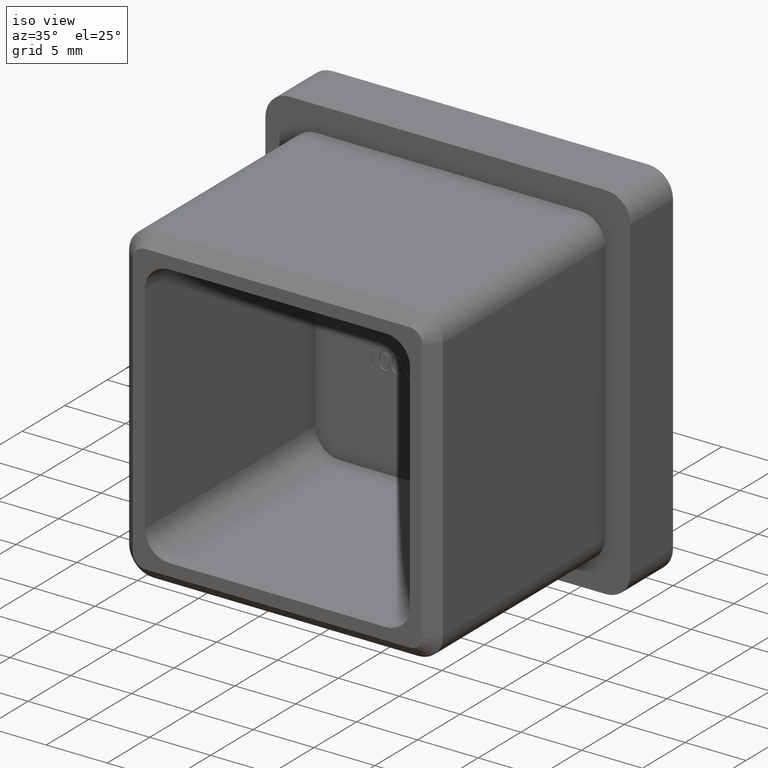
[diagram: clean part render]
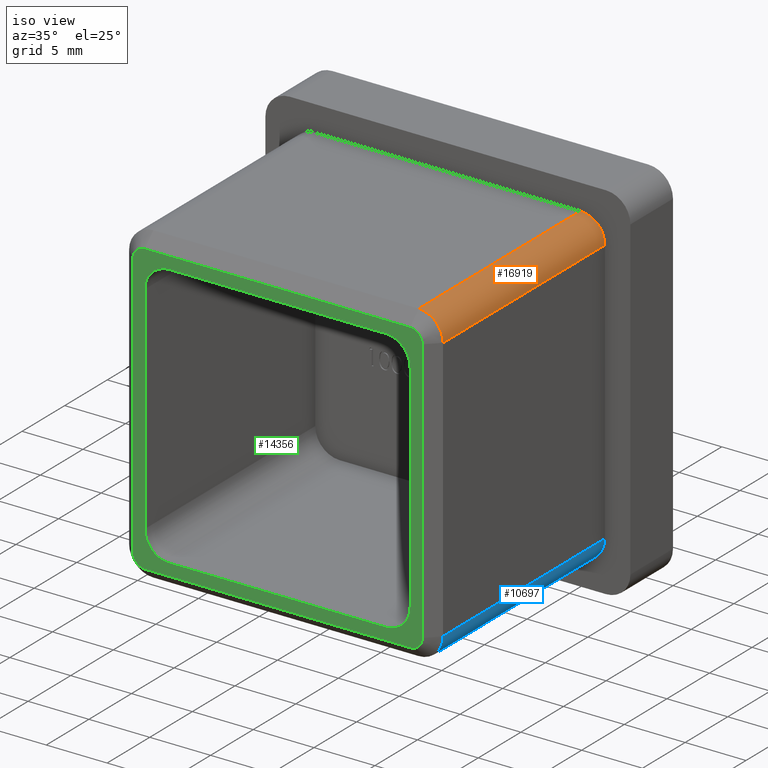
[diagram: same view with three faces highlighted in distinct colors, each labeled with its STEP entity id]
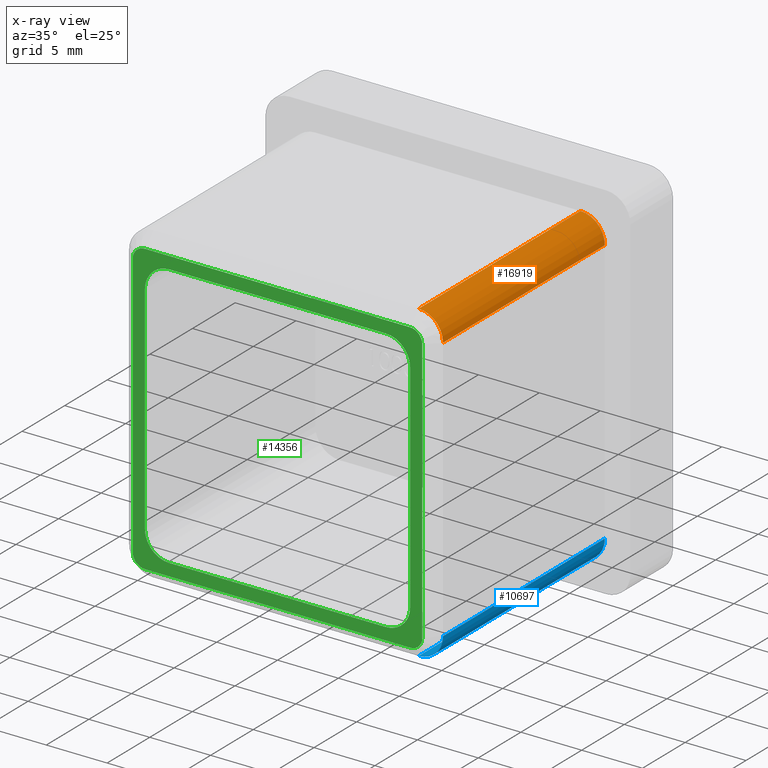
[diagram: x-ray of the same camera — body ghosted, the three highlighted faces saturated]
A machine part, iso view with three faces highlighted in distinct colors.
The next image is the same camera in x-ray (body ghosted, the three faces saturated) — at least one of them is partly hidden behind the body in this view.
Their STEP definitions:

[orange] entity #16919 — the highlighted cylindrical surface (edge-blend (fillet) strip) has radius 2 mm, axis along (0, 1, 0).
#372 = CARTESIAN_POINT ( 'NONE',  ( 10.90000000000000400, -20.00000000000000000, 12.90000000000000600 ) ) ;
#675 = EDGE_CURVE ( 'NONE', #17185, #14687, #14246, .T. ) ;
#1902 = DIRECTION ( 'NONE',  ( 0.0000000000000000000, 1.000000000000000000, 0.0000000000000000000 ) ) ;
#2647 = ORIENTED_EDGE ( 'NONE', *, *, #10347, .F. ) ;
#2773 = CARTESIAN_POINT ( 'NONE',  ( 10.90000000000000400, -19.00000000000000000, 12.90000000000000600 ) ) ;
#3152 = DIRECTION ( 'NONE',  ( 0.0000000000000000000, 0.0000000000000000000, 1.000000000000000000 ) ) ;
#4919 = AXIS2_PLACEMENT_3D ( 'NONE', #10643, #16158, #12063 ) ;
#5262 = VECTOR ( 'NONE', #8575, 1000.000000000000000 ) ;
#5779 = CARTESIAN_POINT ( 'NONE',  ( 12.90000000000000600, -20.00000000000000000, 10.90000000000000600 ) ) ;
#6280 = EDGE_LOOP ( 'NONE', ( #10754, #15934, #13231, #2647 ) ) ;
#6798 = CYLINDRICAL_SURFACE ( 'NONE', #8849, 2.000000000000000000 ) ;
#6835 = CIRCLE ( 'NONE', #4919, 2.000000000000000000 ) ;
#7139 = CARTESIAN_POINT ( 'NONE',  ( 10.90000000000000400, 0.0000000000000000000, 10.90000000000000600 ) ) ;
#7676 = VECTOR ( 'NONE', #16742, 1000.000000000000000 ) ;
#8197 = CARTESIAN_POINT ( 'NONE',  ( 12.90000000000000600, 0.0000000000000000000, 10.90000000000000600 ) ) ;
#8359 = VERTEX_POINT ( 'NONE', #8197 ) ;
#8388 = CARTESIAN_POINT ( 'NONE',  ( 12.90000000000000600, -19.00000000000000000, 10.90000000000000600 ) ) ;
#8575 = DIRECTION ( 'NONE',  ( -0.0000000000000000000, -1.000000000000000000, -0.0000000000000000000 ) ) ;
#8849 = AXIS2_PLACEMENT_3D ( 'NONE', #16968, #17023, #15715 ) ;
#9022 = EDGE_CURVE ( 'NONE', #8359, #11552, #9722, .T. ) ;
#9722 = LINE ( 'NONE', #5779, #5262 ) ;
#10347 = EDGE_CURVE ( 'NONE', #14687, #8359, #13299, .T. ) ;
#10643 = CARTESIAN_POINT ( 'NONE',  ( 10.90000000000000400, -19.00000000000000000, 10.90000000000000600 ) ) ;
#10754 = ORIENTED_EDGE ( 'NONE', *, *, #675, .F. ) ;
#11552 = VERTEX_POINT ( 'NONE', #8388 ) ;
#12063 = DIRECTION ( 'NONE',  ( 0.0000000000000000000, 0.0000000000000000000, -1.000000000000000000 ) ) ;
#12082 = CARTESIAN_POINT ( 'NONE',  ( 10.90000000000000400, 0.0000000000000000000, 12.90000000000000600 ) ) ;
#12410 = AXIS2_PLACEMENT_3D ( 'NONE', #7139, #1902, #3152 ) ;
#13231 = ORIENTED_EDGE ( 'NONE', *, *, #9022, .F. ) ;
#13299 = CIRCLE ( 'NONE', #12410, 2.000000000000000000 ) ;
#14246 = LINE ( 'NONE', #372, #7676 ) ;
#14687 = VERTEX_POINT ( 'NONE', #12082 ) ;
#15037 = EDGE_CURVE ( 'NONE', #17185, #11552, #6835, .T. ) ;
#15715 = DIRECTION ( 'NONE',  ( 0.0000000000000000000, 0.0000000000000000000, 1.000000000000000000 ) ) ;
#15934 = ORIENTED_EDGE ( 'NONE', *, *, #15037, .T. ) ;
#16158 = DIRECTION ( 'NONE',  ( 0.0000000000000000000, 1.000000000000000000, 0.0000000000000000000 ) ) ;
#16546 = FACE_OUTER_BOUND ( 'NONE', #6280, .T. ) ;
#16742 = DIRECTION ( 'NONE',  ( 0.0000000000000000000, 1.000000000000000000, 0.0000000000000000000 ) ) ;
#16919 = ADVANCED_FACE ( 'NONE', ( #16546 ), #6798, .T. ) ;
#16968 = CARTESIAN_POINT ( 'NONE',  ( 10.90000000000000400, -20.00000000000000000, 10.90000000000000600 ) ) ;
#17023 = DIRECTION ( 'NONE',  ( 0.0000000000000000000, 1.000000000000000000, 0.0000000000000000000 ) ) ;
#17185 = VERTEX_POINT ( 'NONE', #2773 ) ;

[blue] entity #10697 — the highlighted cylindrical surface (edge-blend (fillet) strip) has radius 2 mm, axis along (0, 1, 0).
#41 = VECTOR ( 'NONE', #11665, 1000.000000000000000 ) ;
#2076 = VECTOR ( 'NONE', #3824, 1000.000000000000000 ) ;
#2622 = LINE ( 'NONE', #15650, #41 ) ;
#2645 = EDGE_CURVE ( 'NONE', #14105, #12342, #17092, .T. ) ;
#2680 = CARTESIAN_POINT ( 'NONE',  ( 10.90000000000000400, -19.00000000000000000, -12.90000000000000600 ) ) ;
#3010 = CARTESIAN_POINT ( 'NONE',  ( 12.90000000000000600, 0.0000000000000000000, -10.90000000000000400 ) ) ;
#3331 = AXIS2_PLACEMENT_3D ( 'NONE', #9098, #11866, #14539 ) ;
#3824 = DIRECTION ( 'NONE',  ( 0.0000000000000000000, 1.000000000000000000, 0.0000000000000000000 ) ) ;
#3952 = LINE ( 'NONE', #11958, #2076 ) ;
#4311 = DIRECTION ( 'NONE',  ( 0.0000000000000000000, 1.000000000000000000, 0.0000000000000000000 ) ) ;
#4970 = ORIENTED_EDGE ( 'NONE', *, *, #7963, .T. ) ;
#5001 = EDGE_CURVE ( 'NONE', #12342, #12366, #2622, .T. ) ;
#5691 = DIRECTION ( 'NONE',  ( 0.0000000000000000000, 0.0000000000000000000, 1.000000000000000000 ) ) ;
#5874 = CIRCLE ( 'NONE', #16740, 2.000000000000000000 ) ;
#6839 = CARTESIAN_POINT ( 'NONE',  ( 10.90000000000000400, 0.0000000000000000000, -12.90000000000000600 ) ) ;
#7213 = AXIS2_PLACEMENT_3D ( 'NONE', #12424, #4311, #5691 ) ;
#7959 = EDGE_LOOP ( 'NONE', ( #17225, #4970, #8133, #10488 ) ) ;
#7963 = EDGE_CURVE ( 'NONE', #12979, #12366, #5874, .T. ) ;
#8014 = FACE_OUTER_BOUND ( 'NONE', #7959, .T. ) ;
#8133 = ORIENTED_EDGE ( 'NONE', *, *, #5001, .F. ) ;
#9098 = CARTESIAN_POINT ( 'NONE',  ( 10.90000000000000600, 0.0000000000000000000, -10.90000000000000400 ) ) ;
#9319 = CARTESIAN_POINT ( 'NONE',  ( 12.90000000000000600, -19.00000000000000000, -10.90000000000000400 ) ) ;
#10488 = ORIENTED_EDGE ( 'NONE', *, *, #2645, .F. ) ;
#10655 = EDGE_CURVE ( 'NONE', #12979, #14105, #3952, .T. ) ;
#10697 = ADVANCED_FACE ( 'NONE', ( #8014 ), #17128, .T. ) ;
#10937 = DIRECTION ( 'NONE',  ( 0.0000000000000000000, 1.000000000000000000, 0.0000000000000000000 ) ) ;
#11665 = DIRECTION ( 'NONE',  ( -0.0000000000000000000, -1.000000000000000000, -0.0000000000000000000 ) ) ;
#11866 = DIRECTION ( 'NONE',  ( 0.0000000000000000000, 1.000000000000000000, 0.0000000000000000000 ) ) ;
#11958 = CARTESIAN_POINT ( 'NONE',  ( 12.90000000000000600, -20.00000000000000000, -10.90000000000000400 ) ) ;
#12342 = VERTEX_POINT ( 'NONE', #6839 ) ;
#12366 = VERTEX_POINT ( 'NONE', #2680 ) ;
#12424 = CARTESIAN_POINT ( 'NONE',  ( 10.90000000000000600, -20.00000000000000000, -10.90000000000000400 ) ) ;
#12979 = VERTEX_POINT ( 'NONE', #9319 ) ;
#14105 = VERTEX_POINT ( 'NONE', #3010 ) ;
#14539 = DIRECTION ( 'NONE',  ( 0.0000000000000000000, 0.0000000000000000000, 1.000000000000000000 ) ) ;
#14920 = DIRECTION ( 'NONE',  ( 0.0000000000000000000, 0.0000000000000000000, -1.000000000000000000 ) ) ;
#15650 = CARTESIAN_POINT ( 'NONE',  ( 10.90000000000000400, -20.00000000000000000, -12.90000000000000600 ) ) ;
#16740 = AXIS2_PLACEMENT_3D ( 'NONE', #17586, #10937, #14920 ) ;
#17092 = CIRCLE ( 'NONE', #3331, 2.000000000000000000 ) ;
#17128 = CYLINDRICAL_SURFACE ( 'NONE', #7213, 2.000000000000000000 ) ;
#17225 = ORIENTED_EDGE ( 'NONE', *, *, #10655, .F. ) ;
#17586 = CARTESIAN_POINT ( 'NONE',  ( 10.90000000000000600, -19.00000000000000000, -10.90000000000000400 ) ) ;

[green] entity #14356 — the highlighted planar face has unit normal (0, -1, 0).
#793 = CIRCLE ( 'NONE', #12638, 2.000000000000000000 ) ;
#813 = AXIS2_PLACEMENT_3D ( 'NONE', #5502, #6326, #15844 ) ;
#883 = VERTEX_POINT ( 'NONE', #2435 ) ;
#1160 = CIRCLE ( 'NONE', #10469, 2.000000000000000000 ) ;
#1190 = DIRECTION ( 'NONE',  ( -0.0000000000000000000, 1.000000000000000000, -0.0000000000000000000 ) ) ;
#1310 = CARTESIAN_POINT ( 'NONE',  ( 0.0000000000000000000, -20.00000000000000000, 0.0000000000000000000 ) ) ;
#1401 = CARTESIAN_POINT ( 'NONE',  ( -10.90000000000000600, -20.00000000000000000, 10.90000000000000600 ) ) ;
#1526 = CARTESIAN_POINT ( 'NONE',  ( -8.900000000000005700, -20.00000000000000000, 10.90000000000000600 ) ) ;
#1545 = CARTESIAN_POINT ( 'NONE',  ( 10.90000000000000400, -20.00000000000000000, 10.90000000000000600 ) ) ;
#1582 = VERTEX_POINT ( 'NONE', #15245 ) ;
#1822 = VECTOR ( 'NONE', #9786, 1000.000000000000000 ) ;
#1943 = ORIENTED_EDGE ( 'NONE', *, *, #7454, .F. ) ;
#1974 = FACE_BOUND ( 'NONE', #3793, .T. ) ;
#2029 = LINE ( 'NONE', #5951, #1822 ) ;
#2175 = EDGE_CURVE ( 'NONE', #15092, #6848, #15634, .T. ) ;
#2435 = CARTESIAN_POINT ( 'NONE',  ( -10.90000000000000600, -20.00000000000000000, 11.90000000000000400 ) ) ;
#2489 = EDGE_CURVE ( 'NONE', #10411, #883, #8413, .T. ) ;
#2556 = VERTEX_POINT ( 'NONE', #10924 ) ;
#2566 = ORIENTED_EDGE ( 'NONE', *, *, #16341, .T. ) ;
#2821 = ORIENTED_EDGE ( 'NONE', *, *, #8778, .T. ) ;
#2870 = VECTOR ( 'NONE', #11483, 1000.000000000000000 ) ;
#2881 = ORIENTED_EDGE ( 'NONE', *, *, #6150, .F. ) ;
#3282 = DIRECTION ( 'NONE',  ( 0.0000000000000000000, 0.0000000000000000000, -1.000000000000000000 ) ) ;
#3746 = DIRECTION ( 'NONE',  ( -0.0000000000000000000, 1.000000000000000000, -0.0000000000000000000 ) ) ;
#3778 = VERTEX_POINT ( 'NONE', #1526 ) ;
#3793 = EDGE_LOOP ( 'NONE', ( #2881, #4323, #6716, #3994, #9986, #2566, #1943, #4297 ) ) ;
#3994 = ORIENTED_EDGE ( 'NONE', *, *, #12831, .T. ) ;
#4015 = ORIENTED_EDGE ( 'NONE', *, *, #11608, .T. ) ;
#4082 = EDGE_CURVE ( 'NONE', #2556, #15325, #4115, .T. ) ;
#4115 = CIRCLE ( 'NONE', #813, 0.9999999999999991100 ) ;
#4297 = ORIENTED_EDGE ( 'NONE', *, *, #2175, .T. ) ;
#4323 = ORIENTED_EDGE ( 'NONE', *, *, #12951, .T. ) ;
#4532 = CARTESIAN_POINT ( 'NONE',  ( -11.90000000000000400, -20.00000000000000000, 10.90000000000000600 ) ) ;
#4558 = VERTEX_POINT ( 'NONE', #4641 ) ;
#4641 = CARTESIAN_POINT ( 'NONE',  ( -8.900000000000005700, -20.00000000000000000, -10.90000000000000600 ) ) ;
#4693 = AXIS2_PLACEMENT_3D ( 'NONE', #1545, #8330, #9737 ) ;
#4728 = CARTESIAN_POINT ( 'NONE',  ( 11.90000000000000400, -20.00000000000000000, -10.90000000000000400 ) ) ;
#4785 = CARTESIAN_POINT ( 'NONE',  ( -10.90000000000000600, -20.00000000000000000, -8.900000000000007500 ) ) ;
#4838 = VERTEX_POINT ( 'NONE', #16840 ) ;
#5036 = ORIENTED_EDGE ( 'NONE', *, *, #7742, .T. ) ;
#5497 = CARTESIAN_POINT ( 'NONE',  ( 8.900000000000007500, -20.00000000000000000, 10.90000000000000600 ) ) ;
#5502 = CARTESIAN_POINT ( 'NONE',  ( 10.90000000000000600, -20.00000000000000000, -10.90000000000000400 ) ) ;
#5541 = DIRECTION ( 'NONE',  ( 0.0000000000000000000, -1.000000000000000000, 0.0000000000000000000 ) ) ;
#5546 = DIRECTION ( 'NONE',  ( 0.0000000000000000000, -1.000000000000000000, 0.0000000000000000000 ) ) ;
#5579 = FACE_OUTER_BOUND ( 'NONE', #17215, .T. ) ;
#5868 = VECTOR ( 'NONE', #16195, 1000.000000000000000 ) ;
#5948 = EDGE_CURVE ( 'NONE', #883, #10896, #6730, .T. ) ;
#5951 = CARTESIAN_POINT ( 'NONE',  ( 10.90000000000000600, -20.00000000000000000, 10.90000000000000600 ) ) ;
#6048 = CARTESIAN_POINT ( 'NONE',  ( 11.90000000000000200, -20.00000000000000000, 10.90000000000000600 ) ) ;
#6150 = EDGE_CURVE ( 'NONE', #4558, #6848, #17532, .T. ) ;
#6292 = LINE ( 'NONE', #15524, #2870 ) ;
#6310 = AXIS2_PLACEMENT_3D ( 'NONE', #12091, #5541, #6784 ) ;
#6326 = DIRECTION ( 'NONE',  ( 0.0000000000000000000, -1.000000000000000000, 0.0000000000000000000 ) ) ;
#6540 = VECTOR ( 'NONE', #10541, 1000.000000000000000 ) ;
#6566 = LINE ( 'NONE', #14745, #7631 ) ;
#6582 = CARTESIAN_POINT ( 'NONE',  ( 10.90000000000000600, -20.00000000000000000, -8.900000000000007500 ) ) ;
#6716 = ORIENTED_EDGE ( 'NONE', *, *, #15144, .F. ) ;
#6730 = CIRCLE ( 'NONE', #7544, 0.9999999999999991100 ) ;
#6784 = DIRECTION ( 'NONE',  ( 0.0000000000000000000, 0.0000000000000000000, -1.000000000000000000 ) ) ;
#6848 = VERTEX_POINT ( 'NONE', #7075 ) ;
#7005 = ORIENTED_EDGE ( 'NONE', *, *, #11587, .T. ) ;
#7075 = CARTESIAN_POINT ( 'NONE',  ( 8.900000000000007500, -20.00000000000000000, -10.90000000000000600 ) ) ;
#7265 = AXIS2_PLACEMENT_3D ( 'NONE', #8234, #13904, #16560 ) ;
#7336 = CARTESIAN_POINT ( 'NONE',  ( -10.90000000000000600, -20.00000000000000000, 10.90000000000000600 ) ) ;
#7454 = EDGE_CURVE ( 'NONE', #15092, #11456, #2029, .T. ) ;
#7544 = AXIS2_PLACEMENT_3D ( 'NONE', #7336, #11401, #3282 ) ;
#7631 = VECTOR ( 'NONE', #8054, 1000.000000000000000 ) ;
#7698 = DIRECTION ( 'NONE',  ( 0.0000000000000000000, 0.0000000000000000000, -1.000000000000000000 ) ) ;
#7711 = VERTEX_POINT ( 'NONE', #6048 ) ;
#7742 = EDGE_CURVE ( 'NONE', #15325, #7711, #6292, .T. ) ;
#7956 = VERTEX_POINT ( 'NONE', #5497 ) ;
#7970 = DIRECTION ( 'NONE',  ( -0.0000000000000000000, 1.000000000000000000, -0.0000000000000000000 ) ) ;
#8054 = DIRECTION ( 'NONE',  ( -1.000000000000000000, -0.0000000000000000000, -0.0000000000000000000 ) ) ;
#8162 = DIRECTION ( 'NONE',  ( 0.0000000000000000000, -0.0000000000000000000, -1.000000000000000000 ) ) ;
#8234 = CARTESIAN_POINT ( 'NONE',  ( 8.900000000000005700, -20.00000000000000000, 8.900000000000005700 ) ) ;
#8330 = DIRECTION ( 'NONE',  ( 0.0000000000000000000, -1.000000000000000000, 0.0000000000000000000 ) ) ;
#8413 = LINE ( 'NONE', #13414, #5868 ) ;
#8422 = CARTESIAN_POINT ( 'NONE',  ( -10.90000000000000600, -20.00000000000000000, -10.90000000000000600 ) ) ;
#8470 = VECTOR ( 'NONE', #10822, 1000.000000000000000 ) ;
#8546 = EDGE_CURVE ( 'NONE', #7956, #3778, #6566, .T. ) ;
#8562 = AXIS2_PLACEMENT_3D ( 'NONE', #14887, #1190, #17557 ) ;
#8778 = EDGE_CURVE ( 'NONE', #1582, #13146, #14611, .T. ) ;
#8962 = ORIENTED_EDGE ( 'NONE', *, *, #5948, .T. ) ;
#9222 = PLANE ( 'NONE',  #9706 ) ;
#9423 = EDGE_CURVE ( 'NONE', #10896, #1582, #12462, .T. ) ;
#9706 = AXIS2_PLACEMENT_3D ( 'NONE', #1310, #5546, #8162 ) ;
#9737 = DIRECTION ( 'NONE',  ( 0.0000000000000000000, 0.0000000000000000000, -1.000000000000000000 ) ) ;
#9786 = DIRECTION ( 'NONE',  ( -0.0000000000000000000, -0.0000000000000000000, 1.000000000000000000 ) ) ;
#9833 = DIRECTION ( 'NONE',  ( 1.000000000000000000, 0.0000000000000000000, 0.0000000000000000000 ) ) ;
#9986 = ORIENTED_EDGE ( 'NONE', *, *, #8546, .F. ) ;
#10146 = LINE ( 'NONE', #13147, #6540 ) ;
#10214 = VECTOR ( 'NONE', #13601, 1000.000000000000000 ) ;
#10368 = CARTESIAN_POINT ( 'NONE',  ( 10.90000000000000400, -20.00000000000000000, 11.90000000000000400 ) ) ;
#10411 = VERTEX_POINT ( 'NONE', #10368 ) ;
#10469 = AXIS2_PLACEMENT_3D ( 'NONE', #14776, #7970, #16059 ) ;
#10541 = DIRECTION ( 'NONE',  ( 1.000000000000000000, 0.0000000000000000000, 0.0000000000000000000 ) ) ;
#10618 = LINE ( 'NONE', #1401, #10214 ) ;
#10676 = ORIENTED_EDGE ( 'NONE', *, *, #2489, .T. ) ;
#10811 = VERTEX_POINT ( 'NONE', #4785 ) ;
#10822 = DIRECTION ( 'NONE',  ( 0.0000000000000000000, 0.0000000000000000000, -1.000000000000000000 ) ) ;
#10896 = VERTEX_POINT ( 'NONE', #4532 ) ;
#10924 = CARTESIAN_POINT ( 'NONE',  ( 10.90000000000000400, -20.00000000000000000, -11.90000000000000400 ) ) ;
#11401 = DIRECTION ( 'NONE',  ( 0.0000000000000000000, -1.000000000000000000, 0.0000000000000000000 ) ) ;
#11456 = VERTEX_POINT ( 'NONE', #17464 ) ;
#11483 = DIRECTION ( 'NONE',  ( 0.0000000000000000000, 0.0000000000000000000, 1.000000000000000000 ) ) ;
#11587 = EDGE_CURVE ( 'NONE', #7711, #10411, #12892, .T. ) ;
#11608 = EDGE_CURVE ( 'NONE', #13146, #2556, #10146, .T. ) ;
#12009 = VECTOR ( 'NONE', #9833, 1000.000000000000000 ) ;
#12091 = CARTESIAN_POINT ( 'NONE',  ( -10.90000000000000600, -20.00000000000000000, -10.90000000000000600 ) ) ;
#12462 = LINE ( 'NONE', #14989, #8470 ) ;
#12638 = AXIS2_PLACEMENT_3D ( 'NONE', #14552, #3746, #7698 ) ;
#12831 = EDGE_CURVE ( 'NONE', #4838, #3778, #793, .T. ) ;
#12892 = CIRCLE ( 'NONE', #4693, 0.9999999999999991100 ) ;
#12951 = EDGE_CURVE ( 'NONE', #4558, #10811, #1160, .T. ) ;
#13146 = VERTEX_POINT ( 'NONE', #16356 ) ;
#13147 = CARTESIAN_POINT ( 'NONE',  ( 10.90000000000000400, -20.00000000000000000, -11.90000000000000400 ) ) ;
#13414 = CARTESIAN_POINT ( 'NONE',  ( -10.90000000000000600, -20.00000000000000000, 11.90000000000000400 ) ) ;
#13569 = ORIENTED_EDGE ( 'NONE', *, *, #9423, .T. ) ;
#13601 = DIRECTION ( 'NONE',  ( 0.0000000000000000000, -0.0000000000000000000, -1.000000000000000000 ) ) ;
#13904 = DIRECTION ( 'NONE',  ( -0.0000000000000000000, 1.000000000000000000, -0.0000000000000000000 ) ) ;
#14356 = ADVANCED_FACE ( 'NONE', ( #5579, #1974 ), #9222, .T. ) ;
#14552 = CARTESIAN_POINT ( 'NONE',  ( -8.900000000000005700, -20.00000000000000000, 8.900000000000005700 ) ) ;
#14611 = CIRCLE ( 'NONE', #6310, 0.9999999999999991100 ) ;
#14644 = CIRCLE ( 'NONE', #7265, 2.000000000000000000 ) ;
#14745 = CARTESIAN_POINT ( 'NONE',  ( -10.90000000000000600, -20.00000000000000000, 10.90000000000000600 ) ) ;
#14776 = CARTESIAN_POINT ( 'NONE',  ( -8.900000000000005700, -20.00000000000000000, -8.900000000000007500 ) ) ;
#14887 = CARTESIAN_POINT ( 'NONE',  ( 8.900000000000007500, -20.00000000000000000, -8.900000000000005700 ) ) ;
#14989 = CARTESIAN_POINT ( 'NONE',  ( -11.90000000000000400, -20.00000000000000000, -10.90000000000000400 ) ) ;
#15092 = VERTEX_POINT ( 'NONE', #6582 ) ;
#15144 = EDGE_CURVE ( 'NONE', #4838, #10811, #10618, .T. ) ;
#15245 = CARTESIAN_POINT ( 'NONE',  ( -11.90000000000000400, -20.00000000000000000, -10.90000000000000600 ) ) ;
#15325 = VERTEX_POINT ( 'NONE', #4728 ) ;
#15524 = CARTESIAN_POINT ( 'NONE',  ( 11.90000000000000400, -20.00000000000000000, 10.90000000000000600 ) ) ;
#15634 = CIRCLE ( 'NONE', #8562, 2.000000000000000000 ) ;
#15844 = DIRECTION ( 'NONE',  ( 0.0000000000000000000, 0.0000000000000000000, -1.000000000000000000 ) ) ;
#15884 = ORIENTED_EDGE ( 'NONE', *, *, #4082, .T. ) ;
#16059 = DIRECTION ( 'NONE',  ( 0.0000000000000000000, 0.0000000000000000000, -1.000000000000000000 ) ) ;
#16195 = DIRECTION ( 'NONE',  ( -1.000000000000000000, 0.0000000000000000000, 0.0000000000000000000 ) ) ;
#16341 = EDGE_CURVE ( 'NONE', #7956, #11456, #14644, .T. ) ;
#16356 = CARTESIAN_POINT ( 'NONE',  ( -10.90000000000000600, -20.00000000000000000, -11.90000000000000400 ) ) ;
#16560 = DIRECTION ( 'NONE',  ( 0.0000000000000000000, 0.0000000000000000000, -1.000000000000000000 ) ) ;
#16840 = CARTESIAN_POINT ( 'NONE',  ( -10.90000000000000600, -20.00000000000000000, 8.900000000000005700 ) ) ;
#17215 = EDGE_LOOP ( 'NONE', ( #15884, #5036, #7005, #10676, #8962, #13569, #2821, #4015 ) ) ;
#17464 = CARTESIAN_POINT ( 'NONE',  ( 10.90000000000000600, -20.00000000000000000, 8.900000000000005700 ) ) ;
#17532 = LINE ( 'NONE', #8422, #12009 ) ;
#17557 = DIRECTION ( 'NONE',  ( 0.0000000000000000000, 0.0000000000000000000, -1.000000000000000000 ) ) ;